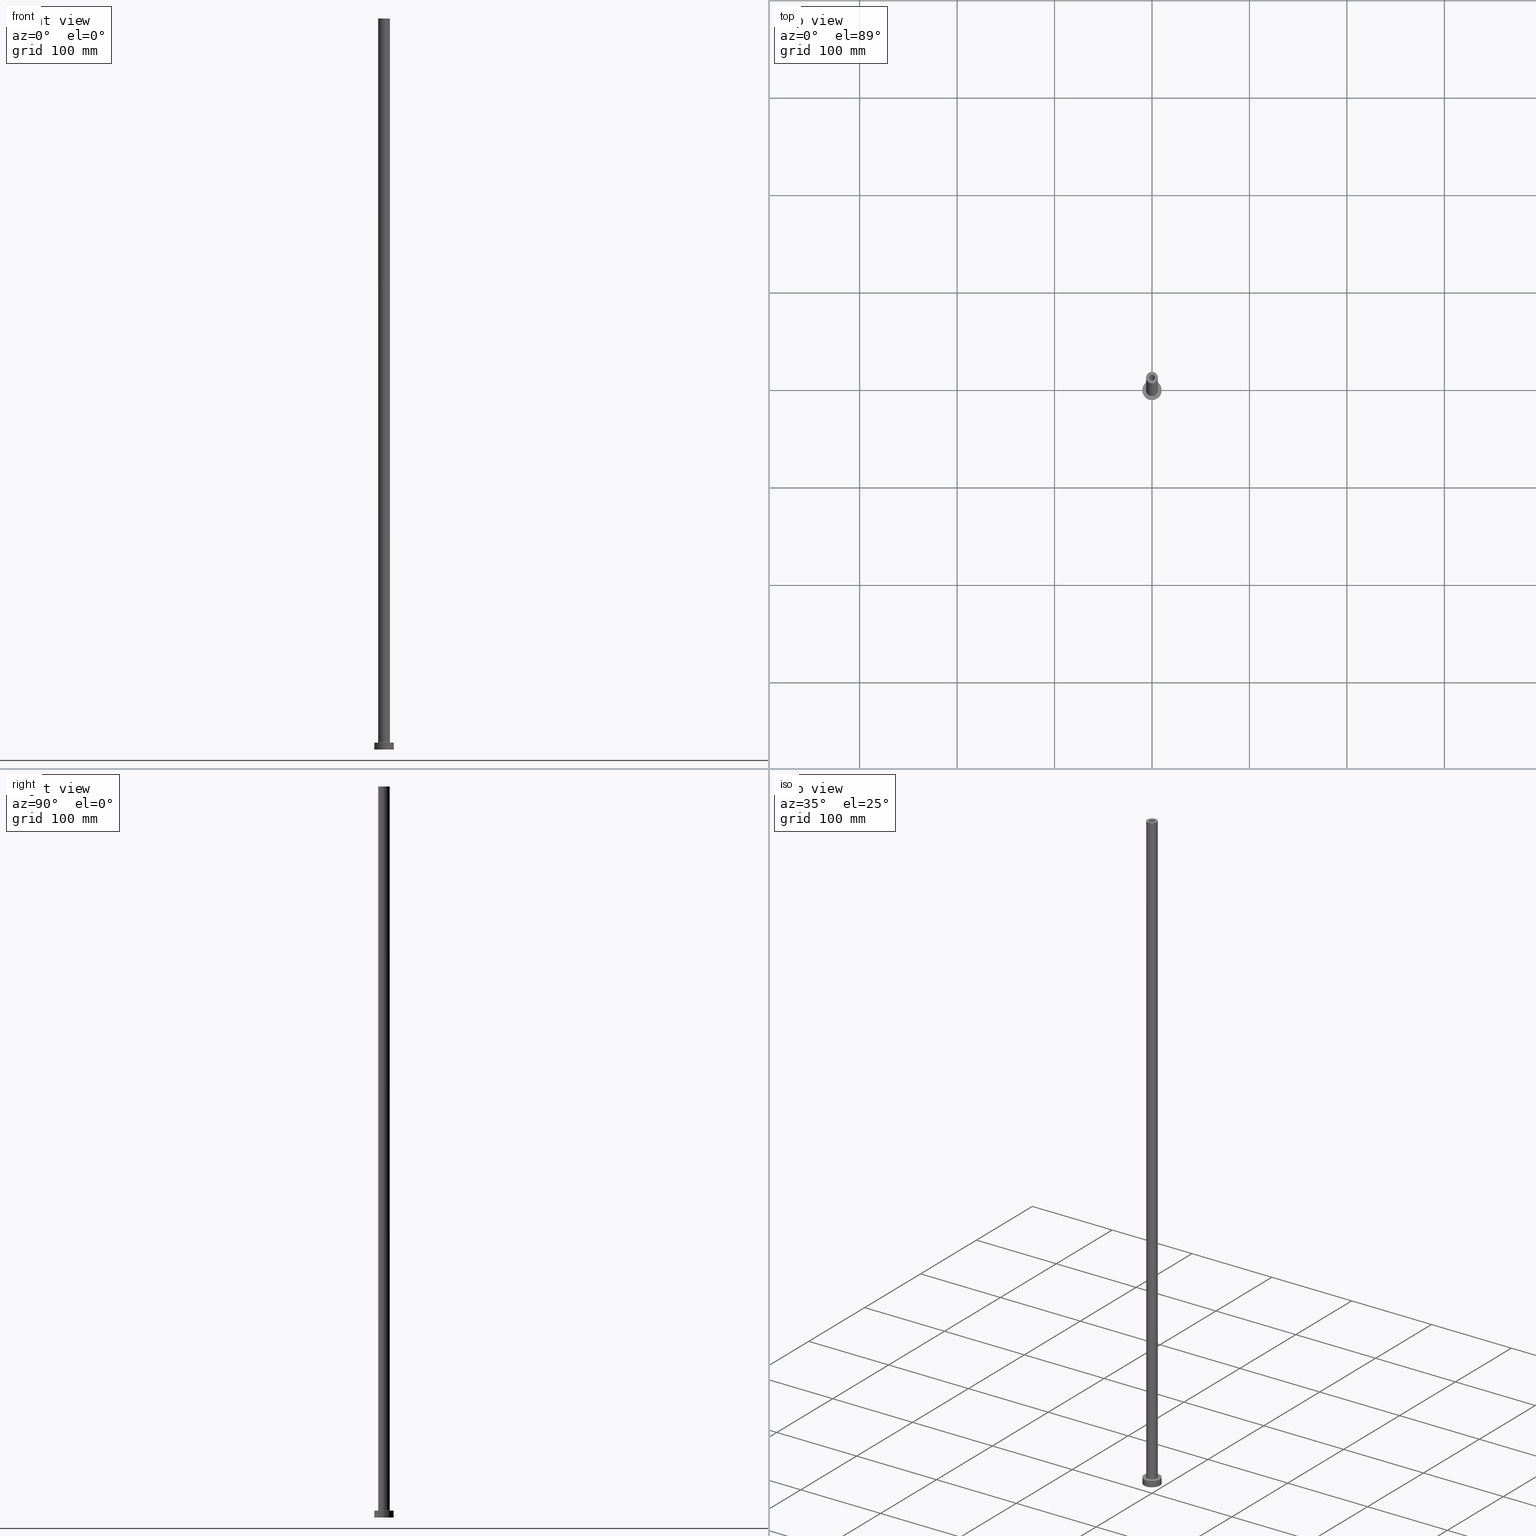
[diagram: canonical four-view strip — front | top / right | iso, engineering-drawing reading convention]
A machine part, canonical four-view strip (front | top / right | iso — engineering-drawing reading convention). The complete STEP part file that produces these views, byte-faithful:
ISO-10303-21;
HEADER;
FILE_DESCRIPTION (( 'STEP AP203' ),
    '1' );
FILE_NAME ('23b8.STEP',
    '2023-02-13T14:58:48',
    ( '' ),
    ( '' ),
    'SwSTEP 2.0',
    'SolidWorks 2019',
    '' );
FILE_SCHEMA (( 'CONFIG_CONTROL_DESIGN' ));
ENDSEC;

DATA;
#1 = PERSON_AND_ORGANIZATION ( #110, #76 ) ;
#2 = CIRCLE ( 'NONE', #53, 3.000000000000000444 ) ;
#3 = COORDINATED_UNIVERSAL_TIME_OFFSET ( 1, 0, .AHEAD. ) ;
#4 =( GEOMETRIC_REPRESENTATION_CONTEXT ( 3 ) GLOBAL_UNCERTAINTY_ASSIGNED_CONTEXT ( ( #8 ) ) GLOBAL_UNIT_ASSIGNED_CONTEXT ( ( #61, #448, #17 ) ) REPRESENTATION_CONTEXT ( 'NONE', 'WORKASPACE' ) );
#5 = CARTESIAN_POINT ( 'NONE',  ( -10.00000000000000000, 0.000000000000000000, 7.000000000000000000 ) ) ;
#6 = EDGE_CURVE ( 'NONE', #95, #152, #2, .T. ) ;
#7 = DIRECTION ( 'NONE',  ( 1.000000000000000000, 0.000000000000000000, 0.000000000000000000 ) ) ;
#8 = UNCERTAINTY_MEASURE_WITH_UNIT (LENGTH_MEASURE( 1.000000000000000082E-05 ), #61, 'distance_accuracy_value', 'NONE');
#9 = ORIENTED_EDGE ( 'NONE', *, *, #141, .F. ) ;
#10 = EDGE_CURVE ( 'NONE', #152, #95, #99, .T. ) ;
#11 = EDGE_LOOP ( 'NONE', ( #9, #261, #183, #125 ) ) ;
#12 = ORIENTED_EDGE ( 'NONE', *, *, #141, .T. ) ;
#13 = CIRCLE ( 'NONE', #398, 10.00000000000000000 ) ;
#14 = EDGE_LOOP ( 'NONE', ( #83, #417, #273, #230 ) ) ;
#15 = CARTESIAN_POINT ( 'NONE',  ( 0.000000000000000000, 0.000000000000000000, 705.0000000000000000 ) ) ;
#16 = FACE_OUTER_BOUND ( 'NONE', #435, .T. ) ;
#17 =( NAMED_UNIT ( * ) SI_UNIT ( $, .STERADIAN. ) SOLID_ANGLE_UNIT ( ) );
#18 = DIRECTION ( 'NONE',  ( -0.000000000000000000, -0.000000000000000000, -1.000000000000000000 ) ) ;
#19 = CARTESIAN_POINT ( 'NONE',  ( 0.000000000000000000, 0.000000000000000000, 750.0000000000000000 ) ) ;
#20 = CC_DESIGN_APPROVAL ( #180, ( #199 ) ) ;
#21 = DIRECTION ( 'NONE',  ( 1.000000000000000000, 0.000000000000000000, 0.000000000000000000 ) ) ;
#22 = CARTESIAN_POINT ( 'NONE',  ( 0.000000000000000000, 0.000000000000000000, 750.0000000000000000 ) ) ;
#23 = EDGE_CURVE ( 'NONE', #366, #226, #446, .T. ) ;
#24 = DIRECTION ( 'NONE',  ( 0.000000000000000000, 0.000000000000000000, 1.000000000000000000 ) ) ;
#25 = DIRECTION ( 'NONE',  ( 0.000000000000000000, 0.000000000000000000, 1.000000000000000000 ) ) ;
#26 = VERTEX_POINT ( 'NONE', #381 ) ;
#27 = DIRECTION ( 'NONE',  ( 0.000000000000000000, 0.000000000000000000, -1.000000000000000000 ) ) ;
#28 = ADVANCED_BREP_SHAPE_REPRESENTATION ( '23b8', ( #348, #428 ), #4 ) ;
#29 = AXIS2_PLACEMENT_3D ( 'NONE', #22, #354, #178 ) ;
#30 = ADVANCED_FACE ( 'NONE', ( #143, #16 ), #134, .F. ) ;
#31 = CARTESIAN_POINT ( 'NONE',  ( 0.000000000000000000, 0.000000000000000000, 7.499999999999951150 ) ) ;
#32 = EDGE_CURVE ( 'NONE', #48, #403, #214, .T. ) ;
#33 = FACE_OUTER_BOUND ( 'NONE', #295, .T. ) ;
#34 = PERSON_AND_ORGANIZATION_ROLE ( 'design_supplier' ) ;
#35 = AXIS2_PLACEMENT_3D ( 'NONE', #414, #24, #310 ) ;
#36 = FACE_OUTER_BOUND ( 'NONE', #316, .T. ) ;
#37 = VECTOR ( 'NONE', #126, 1000.000000000000000 ) ;
#38 = CALENDAR_DATE ( 2023, 13, 2 ) ;
#39 = ORIENTED_EDGE ( 'NONE', *, *, #6, .F. ) ;
#40 = SHAPE_DEFINITION_REPRESENTATION ( #262, #28 ) ;
#41 = AXIS2_PLACEMENT_3D ( 'NONE', #103, #68, #243 ) ;
#42 = CALENDAR_DATE ( 2023, 13, 2 ) ;
#43 = CIRCLE ( 'NONE', #173, 0.5000000000000004441 ) ;
#44 = ADVANCED_FACE ( 'NONE', ( #167 ), #179, .T. ) ;
#45 = ORIENTED_EDGE ( 'NONE', *, *, #10, .F. ) ;
#46 = CIRCLE ( 'NONE', #164, 10.00000000000000000 ) ;
#47 = ADVANCED_FACE ( 'NONE', ( #64, #349 ), #386, .T. ) ;
#48 = VERTEX_POINT ( 'NONE', #312 ) ;
#49 = CARTESIAN_POINT ( 'NONE',  ( 0.000000000000000000, 0.000000000000000000, 713.9095454429503889 ) ) ;
#50 = CARTESIAN_POINT ( 'NONE',  ( 0.000000000000000000, 0.000000000000000000, 705.0000000000000000 ) ) ;
#51 = ORIENTED_EDGE ( 'NONE', *, *, #78, .T. ) ;
#52 = DIRECTION ( 'NONE',  ( -1.000000000000000000, 0.000000000000000000, 0.000000000000000000 ) ) ;
#53 = AXIS2_PLACEMENT_3D ( 'NONE', #284, #279, #21 ) ;
#54 = FACE_OUTER_BOUND ( 'NONE', #200, .T. ) ;
#55 = EDGE_CURVE ( 'NONE', #374, #400, #169, .T. ) ;
#56 = ORIENTED_EDGE ( 'NONE', *, *, #73, .F. ) ;
#57 = AXIS2_PLACEMENT_3D ( 'NONE', #421, #101, #385 ) ;
#58 = APPROVAL ( #189, 'NEUR�EN�' ) ;
#59 = CARTESIAN_POINT ( 'NONE',  ( 10.00000000000000000, 1.224646799147353256E-15, 0.000000000000000000 ) ) ;
#60 = ORIENTED_EDGE ( 'NONE', *, *, #376, .T. ) ;
#61 =( LENGTH_UNIT ( ) NAMED_UNIT ( * ) SI_UNIT ( .MILLI., .METRE. ) );
#62 = CARTESIAN_POINT ( 'NONE',  ( 0.000000000000000000, 0.000000000000000000, 750.0000000000000000 ) ) ;
#63 = AXIS2_PLACEMENT_3D ( 'NONE', #277, #350, #97 ) ;
#64 = FACE_BOUND ( 'NONE', #82, .T. ) ;
#65 = CARTESIAN_POINT ( 'NONE',  ( 0.000000000000000000, 0.000000000000000000, 705.0000000000000000 ) ) ;
#66 = APPROVAL_PERSON_ORGANIZATION ( #356, #58, #194 ) ;
#67 = EDGE_CURVE ( 'NONE', #456, #299, #148, .T. ) ;
#68 = DIRECTION ( 'NONE',  ( 0.000000000000000000, 0.000000000000000000, 1.000000000000000000 ) ) ;
#69 = DIRECTION ( 'NONE',  ( 0.000000000000000000, -1.000000000000000000, 0.000000000000000000 ) ) ;
#70 = DIRECTION ( 'NONE',  ( 0.000000000000000000, 0.000000000000000000, 1.000000000000000000 ) ) ;
#71 = CARTESIAN_POINT ( 'NONE',  ( -3.150000000000000355, 0.000000000000000000, 0.000000000000000000 ) ) ;
#72 = EDGE_LOOP ( 'NONE', ( #420, #135 ) ) ;
#73 = EDGE_CURVE ( 'NONE', #299, #140, #206, .T. ) ;
#74 = DIRECTION ( 'NONE',  ( 0.000000000000000000, 0.000000000000000000, 1.000000000000000000 ) ) ;
#75 = LOCAL_TIME ( 15, 58, 48.00000000000000000, #362 ) ;
#76 = ORGANIZATION ( 'NEUR�EN�', 'NEUR�EN�', '' ) ;
#77 = DIRECTION ( 'NONE',  ( 1.000000000000000000, 0.000000000000000000, 0.000000000000000000 ) ) ;
#78 = EDGE_CURVE ( 'NONE', #118, #140, #182, .T. ) ;
#79 = DATE_AND_TIME ( #253, #460 ) ;
#80 = APPROVAL_ROLE ( '' ) ;
#81 = AXIS2_PLACEMENT_3D ( 'NONE', #31, #186, #319 ) ;
#82 = EDGE_LOOP ( 'NONE', ( #339, #270 ) ) ;
#83 = ORIENTED_EDGE ( 'NONE', *, *, #205, .F. ) ;
#84 = AXIS2_PLACEMENT_3D ( 'NONE', #130, #247, #172 ) ;
#85 = PERSON_AND_ORGANIZATION ( #110, #76 ) ;
#86 = VECTOR ( 'NONE', #288, 1000.000000000000000 ) ;
#87 = ORIENTED_EDGE ( 'NONE', *, *, #379, .F. ) ;
#88 = TOROIDAL_SURFACE ( 'NONE', #301, 6.500000000000000888, 0.5000000000000000000 ) ;
#89 = DIRECTION ( 'NONE',  ( -0.000000000000000000, -0.000000000000000000, -1.000000000000000000 ) ) ;
#90 = ORIENTED_EDGE ( 'NONE', *, *, #232, .F. ) ;
#91 = EDGE_LOOP ( 'NONE', ( #275, #12, #389, #197 ) ) ;
#92 = ORIENTED_EDGE ( 'NONE', *, *, #67, .T. ) ;
#93 = LINE ( 'NONE', #416, #335 ) ;
#94 = EDGE_CURVE ( 'NONE', #456, #118, #241, .T. ) ;
#95 = VERTEX_POINT ( 'NONE', #352 ) ;
#96 = DIRECTION ( 'NONE',  ( -0.000000000000000000, -0.000000000000000000, -1.000000000000000000 ) ) ;
#97 = DIRECTION ( 'NONE',  ( 1.000000000000000000, 0.000000000000000000, 0.000000000000000000 ) ) ;
#98 = FACE_OUTER_BOUND ( 'NONE', #263, .T. ) ;
#99 = CIRCLE ( 'NONE', #315, 3.000000000000000444 ) ;
#100 = DIRECTION ( 'NONE',  ( 1.000000000000000000, 0.000000000000000000, 0.000000000000000000 ) ) ;
#101 = DIRECTION ( 'NONE',  ( 0.000000000000000000, 0.000000000000000000, 1.000000000000000000 ) ) ;
#102 = AXIS2_PLACEMENT_3D ( 'NONE', #217, #311, #145 ) ;
#103 = CARTESIAN_POINT ( 'NONE',  ( 0.000000000000000000, 0.000000000000000000, 705.0000000000000000 ) ) ;
#104 = FACE_BOUND ( 'NONE', #160, .T. ) ;
#105 = ORIENTED_EDGE ( 'NONE', *, *, #192, .T. ) ;
#106 = CARTESIAN_POINT ( 'NONE',  ( 0.000000000000000000, 0.000000000000000000, 750.0000000000000000 ) ) ;
#107 = DIRECTION ( 'NONE',  ( -0.000000000000000000, -0.000000000000000000, -1.000000000000000000 ) ) ;
#108 = AXIS2_PLACEMENT_3D ( 'NONE', #50, #119, #129 ) ;
#109 = COORDINATED_UNIVERSAL_TIME_OFFSET ( 1, 0, .AHEAD. ) ;
#110 = PERSON ( 'NEUR�EN�', 'NEUR�EN�', 'NEUR�EN�', ('NEUR�EN�'), ('NEUR�EN�'), ('NEUR�EN�') ) ;
#111 = FACE_OUTER_BOUND ( 'NONE', #11, .T. ) ;
#112 = MECHANICAL_CONTEXT ( 'NONE', #259, 'mechanical' ) ;
#113 = AXIS2_PLACEMENT_3D ( 'NONE', #216, #377, #100 ) ;
#114 = CIRCLE ( 'NONE', #454, 6.500000000000000888 ) ;
#115 = ORIENTED_EDGE ( 'NONE', *, *, #94, .T. ) ;
#116 = EDGE_CURVE ( 'NONE', #140, #118, #281, .T. ) ;
#117 = PERSON_AND_ORGANIZATION ( #110, #76 ) ;
#118 = VERTEX_POINT ( 'NONE', #458 ) ;
#119 = DIRECTION ( 'NONE',  ( 0.000000000000000000, 0.000000000000000000, 1.000000000000000000 ) ) ;
#120 = EDGE_CURVE ( 'NONE', #461, #48, #397, .T. ) ;
#121 = ORIENTED_EDGE ( 'NONE', *, *, #170, .T. ) ;
#122 = CC_DESIGN_APPROVAL ( #58, ( #196 ) ) ;
#123 = CC_DESIGN_PERSON_AND_ORGANIZATION_ASSIGNMENT ( #225, #396, ( #431 ) ) ;
#124 = DIRECTION ( 'NONE',  ( 1.000000000000000000, 0.000000000000000000, 0.000000000000000000 ) ) ;
#125 = ORIENTED_EDGE ( 'NONE', *, *, #413, .F. ) ;
#126 = DIRECTION ( 'NONE',  ( 0.000000000000000000, 0.000000000000000000, -1.000000000000000000 ) ) ;
#127 = ADVANCED_FACE ( 'NONE', ( #104, #98 ), #210, .T. ) ;
#128 = ORIENTED_EDGE ( 'NONE', *, *, #192, .F. ) ;
#129 = DIRECTION ( 'NONE',  ( 1.000000000000000000, 0.000000000000000000, 0.000000000000000000 ) ) ;
#130 = CARTESIAN_POINT ( 'NONE',  ( 0.000000000000000000, 0.000000000000000000, 7.000000000000000000 ) ) ;
#131 = PRODUCT_DEFINITION_FORMATION_WITH_SPECIFIED_SOURCE ( 'LIBOVOLN�', '', #431, .NOT_KNOWN. ) ;
#132 = PLANE ( 'NONE',  #156 ) ;
#133 = CYLINDRICAL_SURFACE ( 'NONE', #229, 6.000000000000000888 ) ;
#134 = PLANE ( 'NONE',  #41 ) ;
#135 = ORIENTED_EDGE ( 'NONE', *, *, #384, .F. ) ;
#136 = FACE_OUTER_BOUND ( 'NONE', #378, .T. ) ;
#137 = DIRECTION ( 'NONE',  ( -1.000000000000000000, 0.000000000000000000, 0.000000000000000000 ) ) ;
#138 = EDGE_CURVE ( 'NONE', #140, #374, #289, .T. ) ;
#139 = CARTESIAN_POINT ( 'NONE',  ( 0.000000000000000000, 0.000000000000000000, 0.000000000000000000 ) ) ;
#140 = VERTEX_POINT ( 'NONE', #176 ) ;
#141 = EDGE_CURVE ( 'NONE', #118, #400, #43, .T. ) ;
#142 = DIRECTION ( 'NONE',  ( -1.000000000000000000, 0.000000000000000000, 0.000000000000000000 ) ) ;
#143 = FACE_BOUND ( 'NONE', #166, .T. ) ;
#144 = ORIENTED_EDGE ( 'NONE', *, *, #32, .T. ) ;
#145 = DIRECTION ( 'NONE',  ( 1.000000000000000000, 0.000000000000000000, 0.000000000000000000 ) ) ;
#146 = DIRECTION ( 'NONE',  ( -0.000000000000000000, -0.000000000000000000, -1.000000000000000000 ) ) ;
#147 = LINE ( 'NONE', #314, #86 ) ;
#148 = CIRCLE ( 'NONE', #264, 6.000000000000000888 ) ;
#149 = APPLICATION_PROTOCOL_DEFINITION ( 'international standard', 'config_control_design', 1994, #317 ) ;
#150 = CIRCLE ( 'NONE', #329, 3.150000000000000355 ) ;
#151 = EDGE_CURVE ( 'NONE', #226, #366, #427, .T. ) ;
#152 = VERTEX_POINT ( 'NONE', #382 ) ;
#153 = DATE_AND_TIME ( #158, #290 ) ;
#154 = CALENDAR_DATE ( 2023, 13, 2 ) ;
#155 = APPROVAL_DATE_TIME ( #434, #419 ) ;
#156 = AXIS2_PLACEMENT_3D ( 'NONE', #238, #171, #207 ) ;
#157 = VERTEX_POINT ( 'NONE', #71 ) ;
#158 = CALENDAR_DATE ( 2023, 13, 2 ) ;
#159 = ORIENTED_EDGE ( 'NONE', *, *, #440, .T. ) ;
#160 = EDGE_LOOP ( 'NONE', ( #45, #39 ) ) ;
#161 = CC_DESIGN_PERSON_AND_ORGANIZATION_ASSIGNMENT ( #321, #291, ( #196 ) ) ;
#162 = DIRECTION ( 'NONE',  ( -1.000000000000000000, 0.000000000000000000, 0.000000000000000000 ) ) ;
#163 = ORIENTED_EDGE ( 'NONE', *, *, #205, .T. ) ;
#164 = AXIS2_PLACEMENT_3D ( 'NONE', #334, #407, #415 ) ;
#165 = DIRECTION ( 'NONE',  ( 0.000000000000000000, 0.000000000000000000, -1.000000000000000000 ) ) ;
#166 = EDGE_LOOP ( 'NONE', ( #159, #388 ) ) ;
#167 = FACE_OUTER_BOUND ( 'NONE', #14, .T. ) ;
#168 = CARTESIAN_POINT ( 'NONE',  ( 10.00000000000000000, 1.224646799147353256E-15, 7.000000000000000000 ) ) ;
#169 = CIRCLE ( 'NONE', #84, 6.500000000000000888 ) ;
#170 = EDGE_CURVE ( 'NONE', #95, #330, #147, .T. ) ;
#171 = DIRECTION ( 'NONE',  ( 0.000000000000000000, 0.000000000000000000, 1.000000000000000000 ) ) ;
#172 = DIRECTION ( 'NONE',  ( 1.000000000000000000, 0.000000000000000000, 0.000000000000000000 ) ) ;
#173 = AXIS2_PLACEMENT_3D ( 'NONE', #212, #342, #390 ) ;
#174 = CC_DESIGN_APPROVAL ( #419, ( #131 ) ) ;
#175 = PRODUCT_RELATED_PRODUCT_CATEGORY ( 'detail', '', ( #431 ) ) ;
#176 = CARTESIAN_POINT ( 'NONE',  ( 6.000000000000000888, 7.347880794884119736E-16, 7.499999999999951150 ) ) ;
#177 = DIRECTION ( 'NONE',  ( -0.000000000000000000, -0.000000000000000000, -1.000000000000000000 ) ) ;
#178 = DIRECTION ( 'NONE',  ( -1.000000000000000000, 0.000000000000000000, 0.000000000000000000 ) ) ;
#179 = CYLINDRICAL_SURFACE ( 'NONE', #363, 6.000000000000000888 ) ;
#180 = APPROVAL ( #394, 'NEUR�EN�' ) ;
#181 = CARTESIAN_POINT ( 'NONE',  ( 10.00000000000000000, 1.224646799147353256E-15, 7.000000000000000000 ) ) ;
#182 = CIRCLE ( 'NONE', #63, 6.000000000000000888 ) ;
#183 = ORIENTED_EDGE ( 'NONE', *, *, #138, .T. ) ;
#184 = DIRECTION ( 'NONE',  ( -1.000000000000000000, 0.000000000000000000, 0.000000000000000000 ) ) ;
#185 = TOROIDAL_SURFACE ( 'NONE', #57, 6.500000000000000888, 0.5000000000000000000 ) ;
#186 = DIRECTION ( 'NONE',  ( 0.000000000000000000, 0.000000000000000000, 1.000000000000000000 ) ) ;
#187 = DIRECTION ( 'NONE',  ( 0.000000000000000000, 0.000000000000000000, -1.000000000000000000 ) ) ;
#188 = SECURITY_CLASSIFICATION_LEVEL ( 'unclassified' ) ;
#189 = APPROVAL_STATUS ( 'not_yet_approved' ) ;
#190 = CC_DESIGN_DATE_AND_TIME_ASSIGNMENT ( #153, #221, ( #199 ) ) ;
#191 = APPROVAL_ROLE ( '' ) ;
#192 = EDGE_CURVE ( 'NONE', #252, #337, #13, .T. ) ;
#193 = DIRECTION ( 'NONE',  ( 1.000000000000000000, 0.000000000000000000, 0.000000000000000000 ) ) ;
#194 = APPROVAL_ROLE ( '' ) ;
#195 = APPROVAL_STATUS ( 'not_yet_approved' ) ;
#196 = SECURITY_CLASSIFICATION ( '', '', #188 ) ;
#197 = ORIENTED_EDGE ( 'NONE', *, *, #138, .F. ) ;
#198 = EDGE_LOOP ( 'NONE', ( #445, #60, #452, #393 ) ) ;
#199 = PRODUCT_DEFINITION ( 'NEZN�M�', '', #131, #260 ) ;
#200 = EDGE_LOOP ( 'NONE', ( #235, #304, #322, #433 ) ) ;
#201 = AXIS2_PLACEMENT_3D ( 'NONE', #249, #278, #387 ) ;
#202 = CIRCLE ( 'NONE', #345, 3.150000000000000355 ) ;
#203 = CARTESIAN_POINT ( 'NONE',  ( -6.500000000000000888, 7.960204194457796463E-16, 6.999999999999975131 ) ) ;
#204 = EDGE_LOOP ( 'NONE', ( #409, #233 ) ) ;
#205 = EDGE_CURVE ( 'NONE', #299, #456, #353, .T. ) ;
#206 = LINE ( 'NONE', #341, #371 ) ;
#207 = DIRECTION ( 'NONE',  ( 1.000000000000000000, 0.000000000000000000, -0.000000000000000000 ) ) ;
#208 = CARTESIAN_POINT ( 'NONE',  ( 3.150000000000000355, 3.857637417314162196E-16, 713.9095454429503889 ) ) ;
#209 = CIRCLE ( 'NONE', #108, 3.000000000000000444 ) ;
#210 = PLANE ( 'NONE',  #201 ) ;
#211 = DIRECTION ( 'NONE',  ( 0.000000000000000000, 0.000000000000000000, -1.000000000000000000 ) ) ;
#212 = CARTESIAN_POINT ( 'NONE',  ( -6.500000000000000888, 7.960204194457796463E-16, 7.499999999999951150 ) ) ;
#213 = APPLICATION_PROTOCOL_DEFINITION ( 'international standard', 'config_control_design', 1994, #259 ) ;
#214 = LINE ( 'NONE', #208, #237 ) ;
#215 = DIRECTION ( 'NONE',  ( -0.000000000000000000, -0.000000000000000000, -1.000000000000000000 ) ) ;
#216 = CARTESIAN_POINT ( 'NONE',  ( 0.000000000000000000, 0.000000000000000000, 0.000000000000000000 ) ) ;
#217 = CARTESIAN_POINT ( 'NONE',  ( 0.000000000000000000, 0.000000000000000000, 705.0000000000000000 ) ) ;
#218 = CIRCLE ( 'NONE', #309, 3.150000000000000355 ) ;
#219 = DATE_TIME_ROLE ( 'classification_date' ) ;
#220 = DIRECTION ( 'NONE',  ( 0.000000000000000000, 0.000000000000000000, 1.000000000000000000 ) ) ;
#221 = DATE_TIME_ROLE ( 'creation_date' ) ;
#222 = AXIS2_PLACEMENT_3D ( 'NONE', #49, #236, #436 ) ;
#223 = ADVANCED_FACE ( 'NONE', ( #33 ), #424, .T. ) ;
#224 = EDGE_CURVE ( 'NONE', #157, #403, #150, .T. ) ;
#225 = PERSON_AND_ORGANIZATION ( #110, #76 ) ;
#226 = VERTEX_POINT ( 'NONE', #283 ) ;
#227 = ADVANCED_FACE ( 'NONE', ( #351 ), #242, .F. ) ;
#228 = AXIS2_PLACEMENT_3D ( 'NONE', #347, #251, #457 ) ;
#229 = AXIS2_PLACEMENT_3D ( 'NONE', #380, #89, #375 ) ;
#230 = ORIENTED_EDGE ( 'NONE', *, *, #94, .F. ) ;
#231 = CARTESIAN_POINT ( 'NONE',  ( 0.000000000000000000, 0.000000000000000000, 713.9095454429503889 ) ) ;
#232 = EDGE_CURVE ( 'NONE', #330, #26, #266, .T. ) ;
#233 = ORIENTED_EDGE ( 'NONE', *, *, #23, .F. ) ;
#234 = EDGE_CURVE ( 'NONE', #337, #366, #286, .T. ) ;
#235 = ORIENTED_EDGE ( 'NONE', *, *, #326, .F. ) ;
#236 = DIRECTION ( 'NONE',  ( 0.000000000000000000, 0.000000000000000000, -1.000000000000000000 ) ) ;
#237 = VECTOR ( 'NONE', #211, 1000.000000000000000 ) ;
#238 = CARTESIAN_POINT ( 'NONE',  ( 0.000000000000000000, 0.000000000000000000, 0.000000000000000000 ) ) ;
#239 = ORIENTED_EDGE ( 'NONE', *, *, #297, .F. ) ;
#240 = DIRECTION ( 'NONE',  ( 1.000000000000000000, 0.000000000000000000, 0.000000000000000000 ) ) ;
#241 = LINE ( 'NONE', #346, #300 ) ;
#242 = CYLINDRICAL_SURFACE ( 'NONE', #372, 3.000000000000000444 ) ;
#243 = DIRECTION ( 'NONE',  ( 1.000000000000000000, 0.000000000000000000, -0.000000000000000000 ) ) ;
#244 = VECTOR ( 'NONE', #293, 1000.000000000000000 ) ;
#245 = CARTESIAN_POINT ( 'NONE',  ( -10.00000000000000000, 0.000000000000000000, 7.000000000000000000 ) ) ;
#246 = ADVANCED_FACE ( 'NONE', ( #136 ), #418, .F. ) ;
#247 = DIRECTION ( 'NONE',  ( -0.000000000000000000, -0.000000000000000000, -1.000000000000000000 ) ) ;
#248 = DIRECTION ( 'NONE',  ( 0.000000000000000000, 0.000000000000000000, 1.000000000000000000 ) ) ;
#249 = CARTESIAN_POINT ( 'NONE',  ( 0.000000000000000000, 0.000000000000000000, 750.0000000000000000 ) ) ;
#250 = CC_DESIGN_PERSON_AND_ORGANIZATION_ASSIGNMENT ( #1, #324, ( #199 ) ) ;
#251 = DIRECTION ( 'NONE',  ( 0.000000000000000000, 0.000000000000000000, 1.000000000000000000 ) ) ;
#252 = VERTEX_POINT ( 'NONE', #245 ) ;
#253 = CALENDAR_DATE ( 2023, 13, 2 ) ;
#254 = CC_DESIGN_PERSON_AND_ORGANIZATION_ASSIGNMENT ( #117, #402, ( #131 ) ) ;
#255 = ADVANCED_FACE ( 'NONE', ( #313 ), #185, .F. ) ;
#256 = CLOSED_SHELL ( 'NONE', ( #246, #292, #255, #44, #357, #223, #47, #343, #360, #127, #287, #303, #30, #227 ) ) ;
#257 = ORIENTED_EDGE ( 'NONE', *, *, #376, .F. ) ;
#258 = CYLINDRICAL_SURFACE ( 'NONE', #222, 3.150000000000000355 ) ;
#259 = APPLICATION_CONTEXT ( 'configuration controlled 3d designs of mechanical parts and assemblies' ) ;
#260 = DESIGN_CONTEXT ( 'detailed design', #317, 'design' ) ;
#261 = ORIENTED_EDGE ( 'NONE', *, *, #116, .F. ) ;
#262 = PRODUCT_DEFINITION_SHAPE ( 'NONE', 'NONE',  #199 ) ;
#263 = EDGE_LOOP ( 'NONE', ( #92, #163 ) ) ;
#264 = AXIS2_PLACEMENT_3D ( 'NONE', #451, #70, #240 ) ;
#265 = LINE ( 'NONE', #410, #37 ) ;
#266 = CIRCLE ( 'NONE', #102, 3.000000000000000444 ) ;
#267 = ORIENTED_EDGE ( 'NONE', *, *, #272, .T. ) ;
#268 = CARTESIAN_POINT ( 'NONE',  ( 6.000000000000000888, 7.347880794884119736E-16, 750.0000000000000000 ) ) ;
#269 = CARTESIAN_POINT ( 'NONE',  ( -3.150000000000000355, 0.000000000000000000, 705.0000000000000000 ) ) ;
#270 = ORIENTED_EDGE ( 'NONE', *, *, #413, .T. ) ;
#271 = FACE_OUTER_BOUND ( 'NONE', #198, .T. ) ;
#272 = EDGE_CURVE ( 'NONE', #252, #226, #280, .T. ) ;
#273 = ORIENTED_EDGE ( 'NONE', *, *, #116, .T. ) ;
#274 = AXIS2_PLACEMENT_3D ( 'NONE', #392, #69, #187 ) ;
#275 = ORIENTED_EDGE ( 'NONE', *, *, #78, .F. ) ;
#276 = CARTESIAN_POINT ( 'NONE',  ( 3.000000000000000444, 3.673940397442060361E-16, 705.0000000000000000 ) ) ;
#277 = CARTESIAN_POINT ( 'NONE',  ( 0.000000000000000000, 0.000000000000000000, 7.499999999999951150 ) ) ;
#278 = DIRECTION ( 'NONE',  ( 0.000000000000000000, 0.000000000000000000, 1.000000000000000000 ) ) ;
#279 = DIRECTION ( 'NONE',  ( 0.000000000000000000, 0.000000000000000000, 1.000000000000000000 ) ) ;
#280 = LINE ( 'NONE', #5, #244 ) ;
#281 = CIRCLE ( 'NONE', #81, 6.000000000000000888 ) ;
#282 = AXIS2_PLACEMENT_3D ( 'NONE', #369, #412, #162 ) ;
#283 = CARTESIAN_POINT ( 'NONE',  ( -10.00000000000000000, 0.000000000000000000, 0.000000000000000000 ) ) ;
#284 = CARTESIAN_POINT ( 'NONE',  ( 0.000000000000000000, 0.000000000000000000, 750.0000000000000000 ) ) ;
#285 = ORIENTED_EDGE ( 'NONE', *, *, #151, .T. ) ;
#286 = LINE ( 'NONE', #181, #294 ) ;
#287 = ADVANCED_FACE ( 'NONE', ( #111 ), #88, .F. ) ;
#288 = DIRECTION ( 'NONE',  ( 0.000000000000000000, 0.000000000000000000, -1.000000000000000000 ) ) ;
#289 = CIRCLE ( 'NONE', #274, 0.5000000000000004441 ) ;
#290 = LOCAL_TIME ( 15, 58, 48.00000000000000000, #109 ) ;
#291 = PERSON_AND_ORGANIZATION_ROLE ( 'classification_officer' ) ;
#292 = ADVANCED_FACE ( 'NONE', ( #36 ), #258, .F. ) ;
#293 = DIRECTION ( 'NONE',  ( -0.000000000000000000, -0.000000000000000000, -1.000000000000000000 ) ) ;
#294 = VECTOR ( 'NONE', #450, 1000.000000000000000 ) ;
#295 = EDGE_LOOP ( 'NONE', ( #364, #128, #267, #285 ) ) ;
#296 = PERSON_AND_ORGANIZATION ( #110, #76 ) ;
#297 = EDGE_CURVE ( 'NONE', #461, #157, #265, .T. ) ;
#298 = ORIENTED_EDGE ( 'NONE', *, *, #6, .T. ) ;
#299 = VERTEX_POINT ( 'NONE', #268 ) ;
#300 = VECTOR ( 'NONE', #146, 1000.000000000000000 ) ;
#301 = AXIS2_PLACEMENT_3D ( 'NONE', #395, #220, #193 ) ;
#302 = EDGE_LOOP ( 'NONE', ( #105, #449 ) ) ;
#303 = ADVANCED_FACE ( 'NONE', ( #271 ), #404, .F. ) ;
#304 = ORIENTED_EDGE ( 'NONE', *, *, #234, .T. ) ;
#305 = CARTESIAN_POINT ( 'NONE',  ( 0.000000000000000000, 0.000000000000000000, 750.0000000000000000 ) ) ;
#306 = FACE_BOUND ( 'NONE', #72, .T. ) ;
#307 = CYLINDRICAL_SURFACE ( 'NONE', #282, 10.00000000000000000 ) ;
#308 = AXIS2_PLACEMENT_3D ( 'NONE', #65, #248, #459 ) ;
#309 = AXIS2_PLACEMENT_3D ( 'NONE', #15, #336, #441 ) ;
#310 = DIRECTION ( 'NONE',  ( 1.000000000000000000, 0.000000000000000000, -0.000000000000000000 ) ) ;
#311 = DIRECTION ( 'NONE',  ( 0.000000000000000000, 0.000000000000000000, 1.000000000000000000 ) ) ;
#312 = CARTESIAN_POINT ( 'NONE',  ( 3.150000000000000355, 3.857637417314162196E-16, 705.0000000000000000 ) ) ;
#313 = FACE_OUTER_BOUND ( 'NONE', #91, .T. ) ;
#314 = CARTESIAN_POINT ( 'NONE',  ( 3.000000000000000444, 3.673940397442060361E-16, 750.0000000000000000 ) ) ;
#315 = AXIS2_PLACEMENT_3D ( 'NONE', #62, #423, #455 ) ;
#316 = EDGE_LOOP ( 'NONE', ( #401, #144, #442, #239 ) ) ;
#317 = APPLICATION_CONTEXT ( 'configuration controlled 3d designs of mechanical parts and assemblies' ) ;
#318 = DIRECTION ( 'NONE',  ( 1.000000000000000000, 0.000000000000000000, 0.000000000000000000 ) ) ;
#319 = DIRECTION ( 'NONE',  ( 1.000000000000000000, 0.000000000000000000, 0.000000000000000000 ) ) ;
#320 = CC_DESIGN_PERSON_AND_ORGANIZATION_ASSIGNMENT ( #355, #34, ( #131 ) ) ;
#321 = PERSON_AND_ORGANIZATION ( #110, #76 ) ;
#322 = ORIENTED_EDGE ( 'NONE', *, *, #23, .T. ) ;
#323 = LOCAL_TIME ( 15, 58, 48.00000000000000000, #358 ) ;
#324 = PERSON_AND_ORGANIZATION_ROLE ( 'creator' ) ;
#325 = APPROVAL_PERSON_ORGANIZATION ( #85, #180, #80 ) ;
#326 = EDGE_CURVE ( 'NONE', #337, #252, #46, .T. ) ;
#327 = DATE_AND_TIME ( #154, #323 ) ;
#328 = CARTESIAN_POINT ( 'NONE',  ( 0.000000000000000000, 0.000000000000000000, 0.000000000000000000 ) ) ;
#329 = AXIS2_PLACEMENT_3D ( 'NONE', #139, #215, #77 ) ;
#330 = VERTEX_POINT ( 'NONE', #276 ) ;
#331 = ORIENTED_EDGE ( 'NONE', *, *, #170, .F. ) ;
#332 = DIRECTION ( 'NONE',  ( 1.000000000000000000, 0.000000000000000000, 0.000000000000000000 ) ) ;
#333 = EDGE_LOOP ( 'NONE', ( #56, #370, #115, #51 ) ) ;
#334 = CARTESIAN_POINT ( 'NONE',  ( 0.000000000000000000, 0.000000000000000000, 7.000000000000000000 ) ) ;
#335 = VECTOR ( 'NONE', #165, 1000.000000000000000 ) ;
#336 = DIRECTION ( 'NONE',  ( 0.000000000000000000, 0.000000000000000000, 1.000000000000000000 ) ) ;
#337 = VERTEX_POINT ( 'NONE', #168 ) ;
#338 = CARTESIAN_POINT ( 'NONE',  ( -6.000000000000000888, 0.000000000000000000, 750.0000000000000000 ) ) ;
#339 = ORIENTED_EDGE ( 'NONE', *, *, #55, .T. ) ;
#340 = CARTESIAN_POINT ( 'NONE',  ( 0.000000000000000000, 0.000000000000000000, 0.000000000000000000 ) ) ;
#341 = CARTESIAN_POINT ( 'NONE',  ( 6.000000000000000888, 7.347880794884119736E-16, 750.0000000000000000 ) ) ;
#342 = DIRECTION ( 'NONE',  ( 1.224646799147353207E-16, 1.000000000000000000, -0.000000000000000000 ) ) ;
#343 = ADVANCED_FACE ( 'NONE', ( #306, #447 ), #132, .F. ) ;
#344 = DIRECTION ( 'NONE',  ( -0.000000000000000000, -0.000000000000000000, -1.000000000000000000 ) ) ;
#345 = AXIS2_PLACEMENT_3D ( 'NONE', #340, #96, #124 ) ;
#346 = CARTESIAN_POINT ( 'NONE',  ( -6.000000000000000888, 0.000000000000000000, 750.0000000000000000 ) ) ;
#347 = CARTESIAN_POINT ( 'NONE',  ( 0.000000000000000000, 0.000000000000000000, 0.000000000000000000 ) ) ;
#348 = MANIFOLD_SOLID_BREP ( 'Odebrat vysunut�m4', #256 ) ;
#349 = FACE_OUTER_BOUND ( 'NONE', #302, .T. ) ;
#350 = DIRECTION ( 'NONE',  ( 0.000000000000000000, 0.000000000000000000, 1.000000000000000000 ) ) ;
#351 = FACE_OUTER_BOUND ( 'NONE', #405, .T. ) ;
#352 = CARTESIAN_POINT ( 'NONE',  ( 3.000000000000000444, 3.673940397442060361E-16, 750.0000000000000000 ) ) ;
#353 = CIRCLE ( 'NONE', #411, 6.000000000000000888 ) ;
#354 = DIRECTION ( 'NONE',  ( 0.000000000000000000, 0.000000000000000000, -1.000000000000000000 ) ) ;
#355 = PERSON_AND_ORGANIZATION ( #110, #76 ) ;
#356 = PERSON_AND_ORGANIZATION ( #110, #76 ) ;
#357 = ADVANCED_FACE ( 'NONE', ( #54 ), #307, .T. ) ;
#358 = COORDINATED_UNIVERSAL_TIME_OFFSET ( 1, 0, .AHEAD. ) ;
#359 = APPROVAL_DATE_TIME ( #399, #180 ) ;
#360 = ADVANCED_FACE ( 'NONE', ( #373 ), #133, .T. ) ;
#361 = APPROVAL_DATE_TIME ( #327, #58 ) ;
#362 = COORDINATED_UNIVERSAL_TIME_OFFSET ( 1, 0, .AHEAD. ) ;
#363 = AXIS2_PLACEMENT_3D ( 'NONE', #305, #177, #137 ) ;
#364 = ORIENTED_EDGE ( 'NONE', *, *, #234, .F. ) ;
#365 = AXIS2_PLACEMENT_3D ( 'NONE', #453, #107, #142 ) ;
#366 = VERTEX_POINT ( 'NONE', #59 ) ;
#367 = ORIENTED_EDGE ( 'NONE', *, *, #10, .T. ) ;
#368 = DIRECTION ( 'NONE',  ( 0.000000000000000000, 0.000000000000000000, -1.000000000000000000 ) ) ;
#369 = CARTESIAN_POINT ( 'NONE',  ( 0.000000000000000000, 0.000000000000000000, 7.000000000000000000 ) ) ;
#370 = ORIENTED_EDGE ( 'NONE', *, *, #67, .F. ) ;
#371 = VECTOR ( 'NONE', #18, 1000.000000000000000 ) ;
#372 = AXIS2_PLACEMENT_3D ( 'NONE', #19, #27, #184 ) ;
#373 = FACE_OUTER_BOUND ( 'NONE', #333, .T. ) ;
#374 = VERTEX_POINT ( 'NONE', #438 ) ;
#375 = DIRECTION ( 'NONE',  ( -1.000000000000000000, 0.000000000000000000, 0.000000000000000000 ) ) ;
#376 = EDGE_CURVE ( 'NONE', #48, #461, #218, .T. ) ;
#377 = DIRECTION ( 'NONE',  ( 0.000000000000000000, 0.000000000000000000, 1.000000000000000000 ) ) ;
#378 = EDGE_LOOP ( 'NONE', ( #367, #121, #439, #87 ) ) ;
#379 = EDGE_CURVE ( 'NONE', #152, #26, #93, .T. ) ;
#380 = CARTESIAN_POINT ( 'NONE',  ( 0.000000000000000000, 0.000000000000000000, 750.0000000000000000 ) ) ;
#381 = CARTESIAN_POINT ( 'NONE',  ( -3.000000000000000444, 0.000000000000000000, 705.0000000000000000 ) ) ;
#382 = CARTESIAN_POINT ( 'NONE',  ( -3.000000000000000444, 0.000000000000000000, 750.0000000000000000 ) ) ;
#383 = CC_DESIGN_SECURITY_CLASSIFICATION ( #196, ( #131 ) ) ;
#384 = EDGE_CURVE ( 'NONE', #403, #157, #202, .T. ) ;
#385 = DIRECTION ( 'NONE',  ( 1.000000000000000000, 0.000000000000000000, 0.000000000000000000 ) ) ;
#386 = PLANE ( 'NONE',  #35 ) ;
#387 = DIRECTION ( 'NONE',  ( 1.000000000000000000, 0.000000000000000000, -0.000000000000000000 ) ) ;
#388 = ORIENTED_EDGE ( 'NONE', *, *, #232, .T. ) ;
#389 = ORIENTED_EDGE ( 'NONE', *, *, #55, .F. ) ;
#390 = DIRECTION ( 'NONE',  ( -1.000000000000000000, 1.224646799147351482E-16, 0.000000000000000000 ) ) ;
#391 = APPROVAL_PERSON_ORGANIZATION ( #296, #419, #191 ) ;
#392 = CARTESIAN_POINT ( 'NONE',  ( 6.500000000000000888, 0.000000000000000000, 7.499999999999951150 ) ) ;
#393 = ORIENTED_EDGE ( 'NONE', *, *, #224, .T. ) ;
#394 = APPROVAL_STATUS ( 'not_yet_approved' ) ;
#395 = CARTESIAN_POINT ( 'NONE',  ( 0.000000000000000000, 0.000000000000000000, 7.499999999999951150 ) ) ;
#396 = PERSON_AND_ORGANIZATION_ROLE ( 'design_owner' ) ;
#397 = CIRCLE ( 'NONE', #308, 3.150000000000000355 ) ;
#398 = AXIS2_PLACEMENT_3D ( 'NONE', #425, #25, #318 ) ;
#399 = DATE_AND_TIME ( #42, #75 ) ;
#400 = VERTEX_POINT ( 'NONE', #203 ) ;
#401 = ORIENTED_EDGE ( 'NONE', *, *, #120, .T. ) ;
#402 = PERSON_AND_ORGANIZATION_ROLE ( 'creator' ) ;
#403 = VERTEX_POINT ( 'NONE', #444 ) ;
#404 = CYLINDRICAL_SURFACE ( 'NONE', #432, 3.150000000000000355 ) ;
#405 = EDGE_LOOP ( 'NONE', ( #331, #298, #406, #90 ) ) ;
#406 = ORIENTED_EDGE ( 'NONE', *, *, #379, .T. ) ;
#407 = DIRECTION ( 'NONE',  ( 0.000000000000000000, 0.000000000000000000, 1.000000000000000000 ) ) ;
#408 = CARTESIAN_POINT ( 'NONE',  ( 0.000000000000000000, 0.000000000000000000, 7.000000000000000000 ) ) ;
#409 = ORIENTED_EDGE ( 'NONE', *, *, #151, .F. ) ;
#410 = CARTESIAN_POINT ( 'NONE',  ( -3.150000000000000355, 0.000000000000000000, 713.9095454429503889 ) ) ;
#411 = AXIS2_PLACEMENT_3D ( 'NONE', #106, #74, #426 ) ;
#412 = DIRECTION ( 'NONE',  ( -0.000000000000000000, -0.000000000000000000, -1.000000000000000000 ) ) ;
#413 = EDGE_CURVE ( 'NONE', #400, #374, #114, .T. ) ;
#414 = CARTESIAN_POINT ( 'NONE',  ( 0.000000000000000000, 0.000000000000000000, 7.000000000000000000 ) ) ;
#415 = DIRECTION ( 'NONE',  ( 1.000000000000000000, 0.000000000000000000, 0.000000000000000000 ) ) ;
#416 = CARTESIAN_POINT ( 'NONE',  ( -3.000000000000000444, 0.000000000000000000, 750.0000000000000000 ) ) ;
#417 = ORIENTED_EDGE ( 'NONE', *, *, #73, .T. ) ;
#418 = CYLINDRICAL_SURFACE ( 'NONE', #29, 3.000000000000000444 ) ;
#419 = APPROVAL ( #195, 'NEUR�EN�' ) ;
#420 = ORIENTED_EDGE ( 'NONE', *, *, #224, .F. ) ;
#421 = CARTESIAN_POINT ( 'NONE',  ( 0.000000000000000000, 0.000000000000000000, 7.499999999999951150 ) ) ;
#422 = LOCAL_TIME ( 15, 58, 48.00000000000000000, #3 ) ;
#423 = DIRECTION ( 'NONE',  ( 0.000000000000000000, 0.000000000000000000, 1.000000000000000000 ) ) ;
#424 = CYLINDRICAL_SURFACE ( 'NONE', #365, 10.00000000000000000 ) ;
#425 = CARTESIAN_POINT ( 'NONE',  ( 0.000000000000000000, 0.000000000000000000, 7.000000000000000000 ) ) ;
#426 = DIRECTION ( 'NONE',  ( 1.000000000000000000, 0.000000000000000000, 0.000000000000000000 ) ) ;
#427 = CIRCLE ( 'NONE', #228, 10.00000000000000000 ) ;
#428 = AXIS2_PLACEMENT_3D ( 'NONE', #328, #430, #7 ) ;
#429 = COORDINATED_UNIVERSAL_TIME_OFFSET ( 1, 0, .AHEAD. ) ;
#430 = DIRECTION ( 'NONE',  ( 0.000000000000000000, 0.000000000000000000, 1.000000000000000000 ) ) ;
#431 = PRODUCT ( '23b8', '23b8', '', ( #112 ) ) ;
#432 = AXIS2_PLACEMENT_3D ( 'NONE', #231, #368, #52 ) ;
#433 = ORIENTED_EDGE ( 'NONE', *, *, #272, .F. ) ;
#434 = DATE_AND_TIME ( #38, #422 ) ;
#435 = EDGE_LOOP ( 'NONE', ( #443, #257 ) ) ;
#436 = DIRECTION ( 'NONE',  ( -1.000000000000000000, 0.000000000000000000, 0.000000000000000000 ) ) ;
#437 = CC_DESIGN_DATE_AND_TIME_ASSIGNMENT ( #79, #219, ( #196 ) ) ;
#438 = CARTESIAN_POINT ( 'NONE',  ( 6.500000000000000888, 0.000000000000000000, 6.999999999999975131 ) ) ;
#439 = ORIENTED_EDGE ( 'NONE', *, *, #440, .F. ) ;
#440 = EDGE_CURVE ( 'NONE', #26, #330, #209, .T. ) ;
#441 = DIRECTION ( 'NONE',  ( 1.000000000000000000, 0.000000000000000000, 0.000000000000000000 ) ) ;
#442 = ORIENTED_EDGE ( 'NONE', *, *, #384, .T. ) ;
#443 = ORIENTED_EDGE ( 'NONE', *, *, #120, .F. ) ;
#444 = CARTESIAN_POINT ( 'NONE',  ( 3.150000000000000355, 3.857637417314162196E-16, 0.000000000000000000 ) ) ;
#445 = ORIENTED_EDGE ( 'NONE', *, *, #32, .F. ) ;
#446 = CIRCLE ( 'NONE', #113, 10.00000000000000000 ) ;
#447 = FACE_OUTER_BOUND ( 'NONE', #204, .T. ) ;
#448 =( NAMED_UNIT ( * ) PLANE_ANGLE_UNIT ( ) SI_UNIT ( $, .RADIAN. ) );
#449 = ORIENTED_EDGE ( 'NONE', *, *, #326, .T. ) ;
#450 = DIRECTION ( 'NONE',  ( -0.000000000000000000, -0.000000000000000000, -1.000000000000000000 ) ) ;
#451 = CARTESIAN_POINT ( 'NONE',  ( 0.000000000000000000, 0.000000000000000000, 750.0000000000000000 ) ) ;
#452 = ORIENTED_EDGE ( 'NONE', *, *, #297, .T. ) ;
#453 = CARTESIAN_POINT ( 'NONE',  ( 0.000000000000000000, 0.000000000000000000, 7.000000000000000000 ) ) ;
#454 = AXIS2_PLACEMENT_3D ( 'NONE', #408, #344, #332 ) ;
#455 = DIRECTION ( 'NONE',  ( 1.000000000000000000, 0.000000000000000000, 0.000000000000000000 ) ) ;
#456 = VERTEX_POINT ( 'NONE', #338 ) ;
#457 = DIRECTION ( 'NONE',  ( 1.000000000000000000, 0.000000000000000000, 0.000000000000000000 ) ) ;
#458 = CARTESIAN_POINT ( 'NONE',  ( -6.000000000000000888, 0.000000000000000000, 7.499999999999951150 ) ) ;
#459 = DIRECTION ( 'NONE',  ( 1.000000000000000000, 0.000000000000000000, 0.000000000000000000 ) ) ;
#460 = LOCAL_TIME ( 15, 58, 48.00000000000000000, #429 ) ;
#461 = VERTEX_POINT ( 'NONE', #269 ) ;
ENDSEC;
END-ISO-10303-21;
